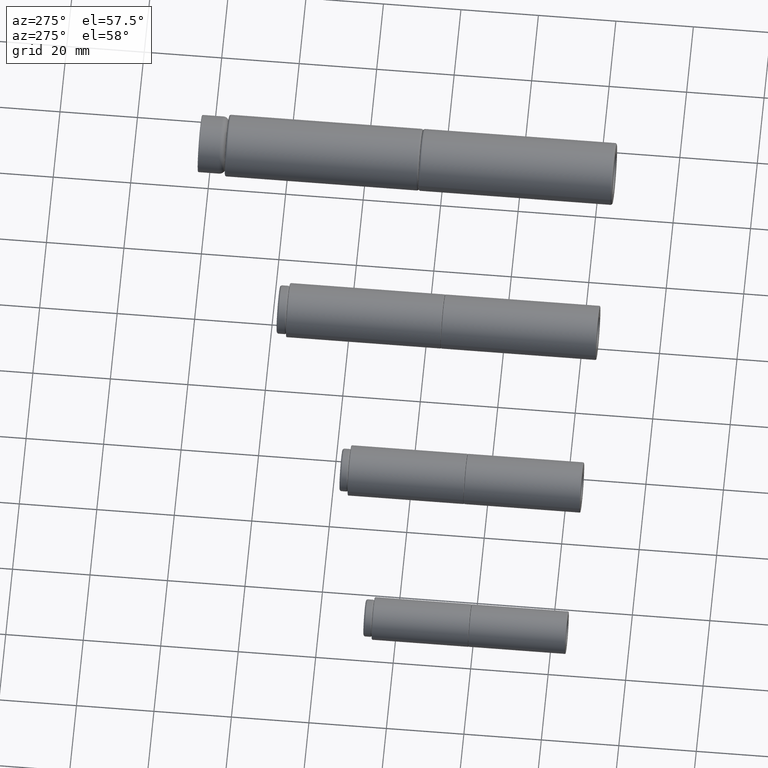
[diagram: clean part render]
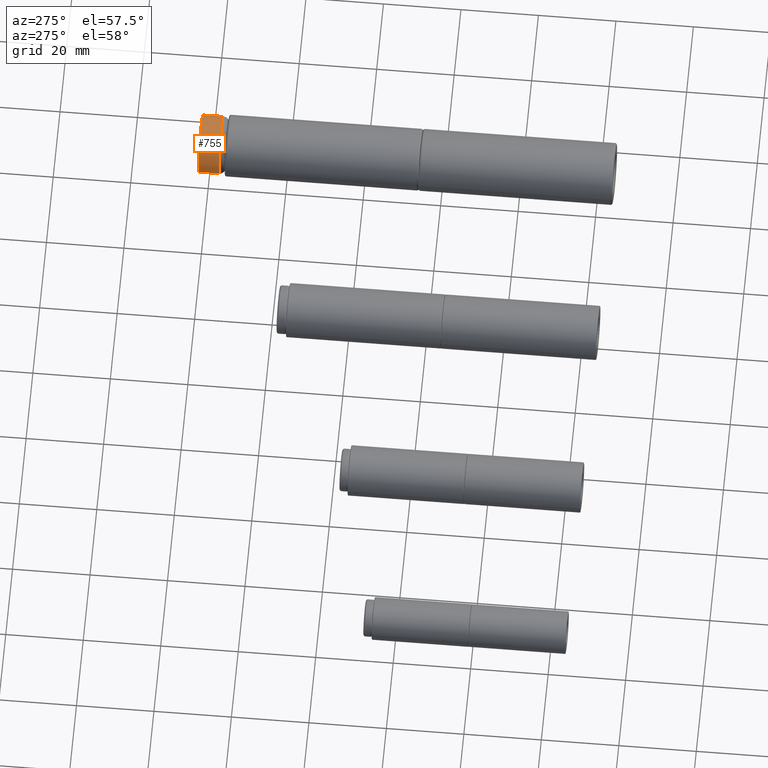
[diagram: same view with one face highlighted and labeled with its STEP entity id]
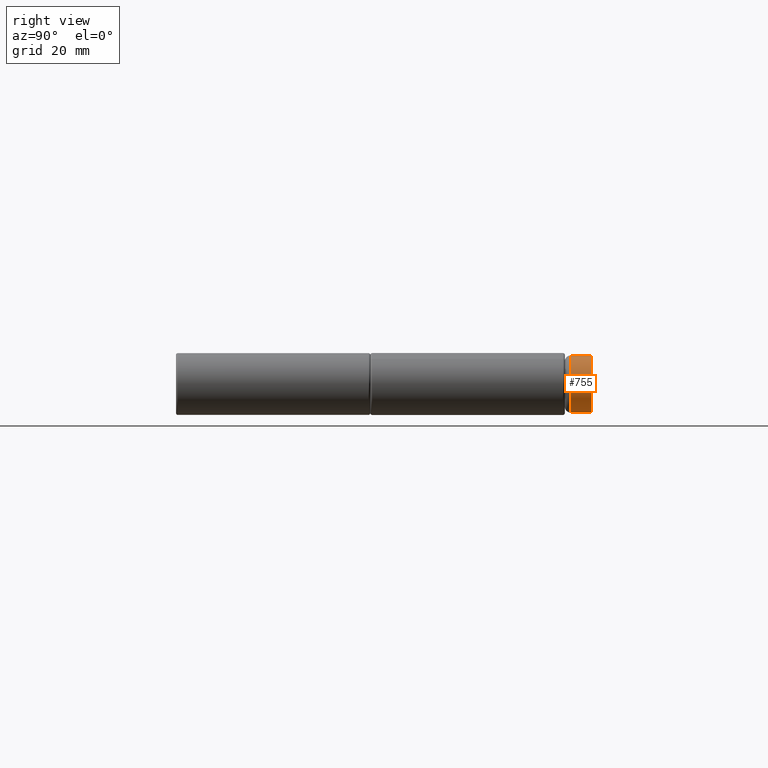
[diagram: same view with one face highlighted and labeled with its STEP entity id]
A machine part, auxiliary view. The second image highlights one B-rep face of the part: STEP entity #755.
A second angle (right view) of the same face is appended — the face is thin or edge-on in the first view.
In plain terms, the highlighted cylindrical surface (bore or boss wall) has radius 7.4 mm, axis along (0, 1, 0).
Its self-contained STEP definition (entity closure, byte-faithful):
#142=CYLINDRICAL_SURFACE('',#884,7.4);
#186=FACE_BOUND('',#351,.T.);
#247=FACE_OUTER_BOUND('',#350,.T.);
#350=EDGE_LOOP('',(#650));
#351=EDGE_LOOP('',(#651));
#428=CIRCLE('',#882,7.4);
#430=CIRCLE('',#885,7.4);
#488=VERTEX_POINT('',#1382);
#490=VERTEX_POINT('',#1387);
#548=EDGE_CURVE('',#488,#488,#428,.T.);
#550=EDGE_CURVE('',#490,#490,#430,.T.);
#650=ORIENTED_EDGE('',*,*,#550,.F.);
#651=ORIENTED_EDGE('',*,*,#548,.F.);
#755=ADVANCED_FACE('',(#247,#186),#142,.T.);
#882=AXIS2_PLACEMENT_3D('',#1383,#1134,#1135);
#884=AXIS2_PLACEMENT_3D('',#1386,#1138,#1139);
#885=AXIS2_PLACEMENT_3D('',#1388,#1140,#1141);
#1134=DIRECTION('center_axis',(-1.22124532708767E-16,1.,0.));
#1135=DIRECTION('ref_axis',(1.,1.21899487501073E-16,0.));
#1138=DIRECTION('center_axis',(-1.22124532708767E-16,1.,0.));
#1139=DIRECTION('ref_axis',(-1.,0.,0.));
#1140=DIRECTION('center_axis',(1.22124532708767E-16,-1.,0.));
#1141=DIRECTION('ref_axis',(1.,1.12522603847144E-16,0.));
#1382=CARTESIAN_POINT('',(-7.4,-0.200000000000001,9.06238631369041E-16));
#1383=CARTESIAN_POINT('Origin',(2.44249065417535E-17,-0.2,0.));
#1386=CARTESIAN_POINT('Origin',(4.27435864480685E-16,-3.5,0.));
#1387=CARTESIAN_POINT('',(-7.39999999999999,-5.49999999999998,-9.06238631369041E-16));
#1388=CARTESIAN_POINT('Origin',(6.71684929898217E-16,-5.49999999999997,
0.));